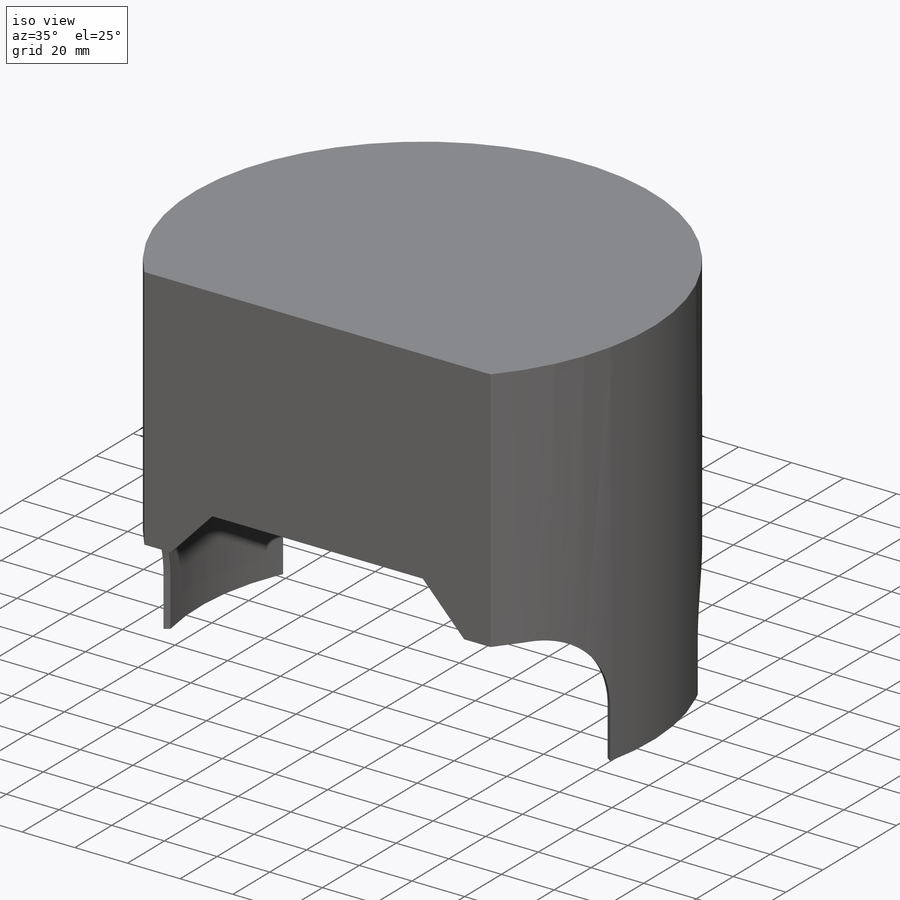
[diagram: iso view]
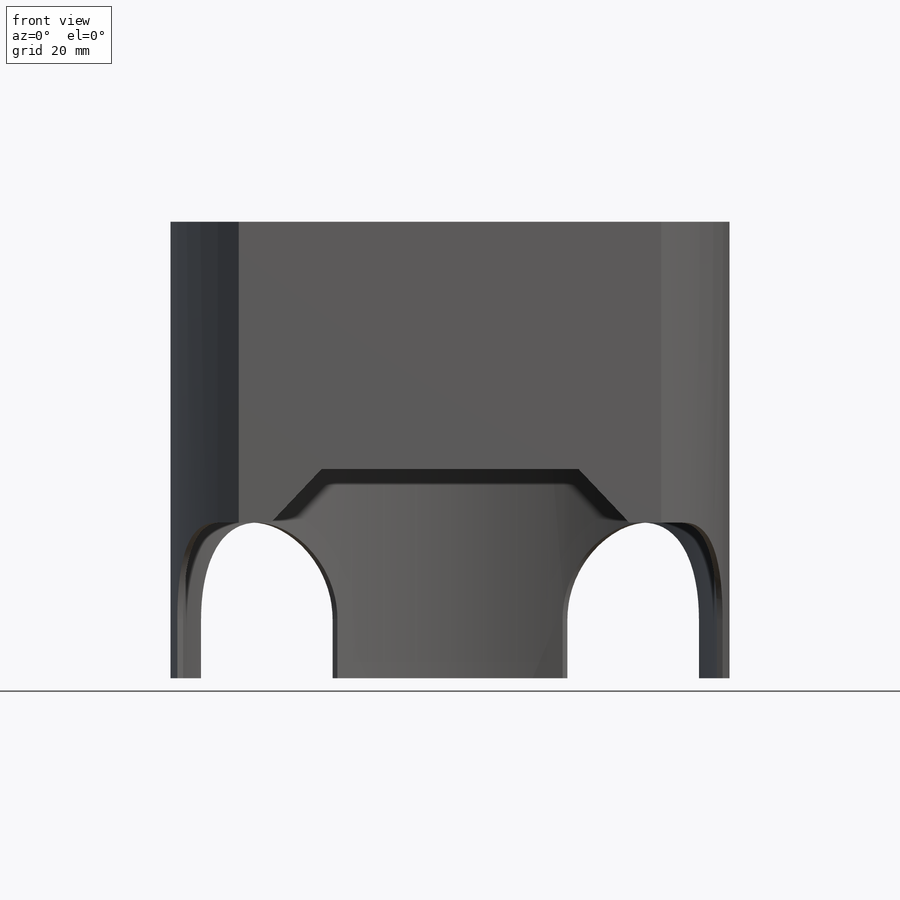
[diagram: front view]
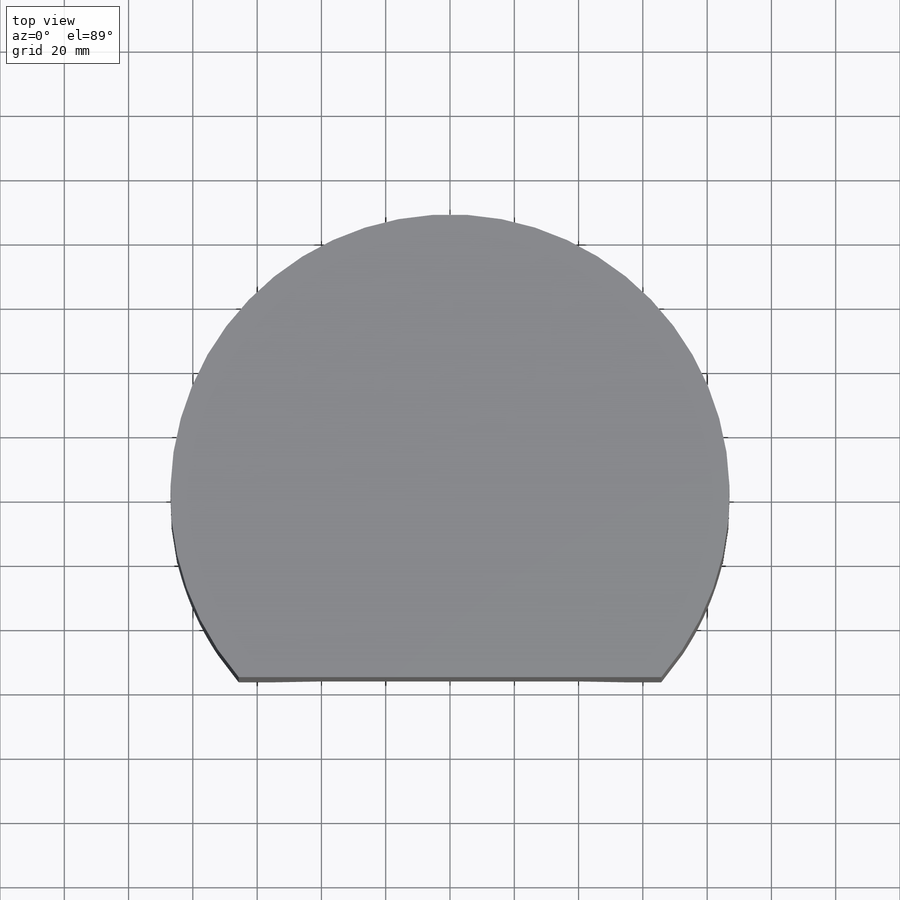
[diagram: top view]
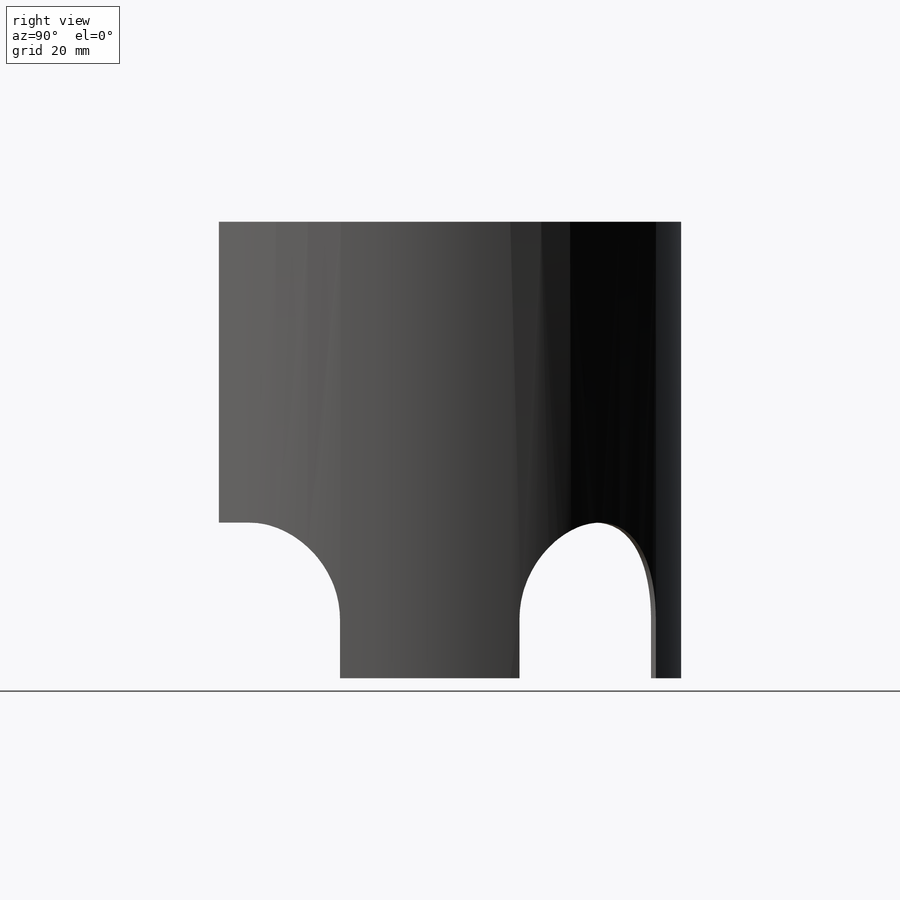
[diagram: right view]
SOLIDWORKS PART (.sldprt)
format: sldprt  version: not decoded by parser v0  size: 229,888 bytes
history: native  units: mm
features: sketch x5, cut_extrude x3, extrude x2, material x1, plane x1, pattern_circular x1, mirror x1 (+11 scaffold rows collapsed)
feature tree (25):
  scaffold x11  (default folders/planes/origin — collapsed)
  material  "Material <not specified>"
  sketch  "Sketch1"  dims[c1.D1=170.0mm c1.D2=~192.231409mm c2.D1=85.0mm c2.D2=2.0mm c2.D3=2.0mm c2.D4=55.0mm]
  extrude  "Boss-Extrude1"  Depth=140mm
  sketch  "Sketch2"
  extrude  "Boss-Extrude2"  Depth=2mm
  plane  "Plane1"
  sketch  "Sketch3"  dims[D1=30.0mm D2=18.4mm]
  cut_extrude  "Cut-Extrude1"  [1 undecoded]
  pattern_circular  "CirPattern1"  Count=2  [1 undecoded]
  mirror  "Mirror1"
  sketch  "Sketch5"
  cut_extrude  "Cut-Extrude3"  [1 undecoded]
  sketch  "Sketch4"  dims[c1.D1=60.0mm c1.D2=35.0mm c1.D3=~14.311546mm c2.D1=10.0mm c2.D2=10.0mm c2.D3=80.0mm c2.D4=65.0mm]
  cut_extrude  "Cut-Extrude2"  [1 undecoded]
decode coverage: 6 of 12 modeling features carry decoded parameters
note: ~ marks probable driven/reference dimensions
note: 4 parameter values undecoded
summary: no parameter record found for 3 features
note: suppression state not decoded; provenance and decode notes live in map.json
